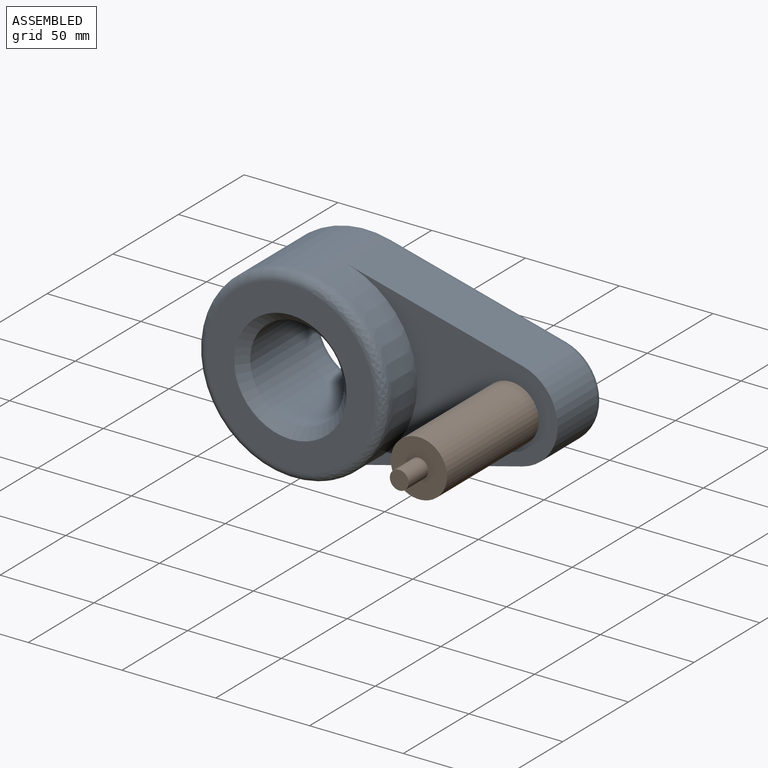
[diagram: assembled view]
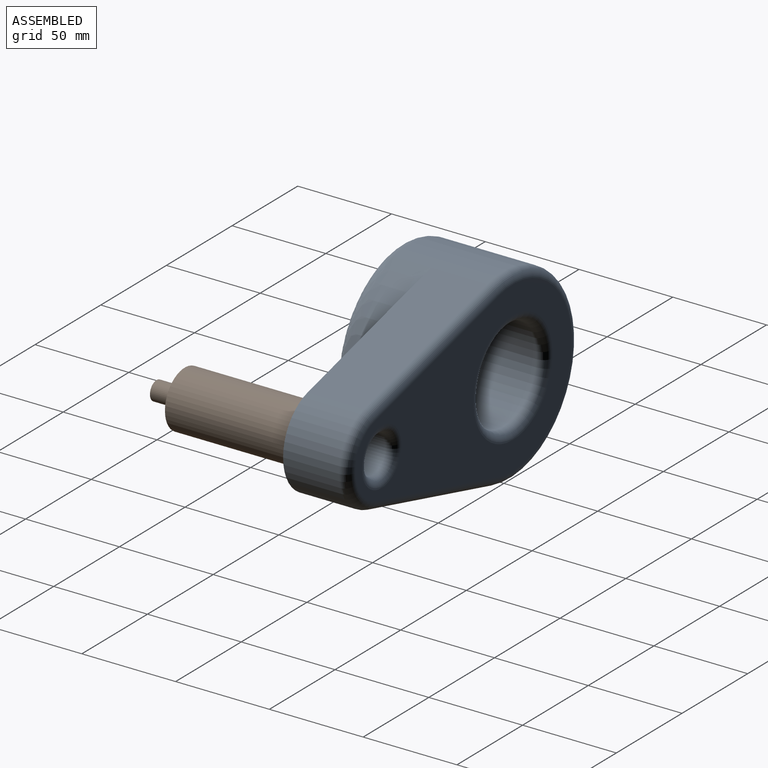
[diagram: assembled view, second angle]
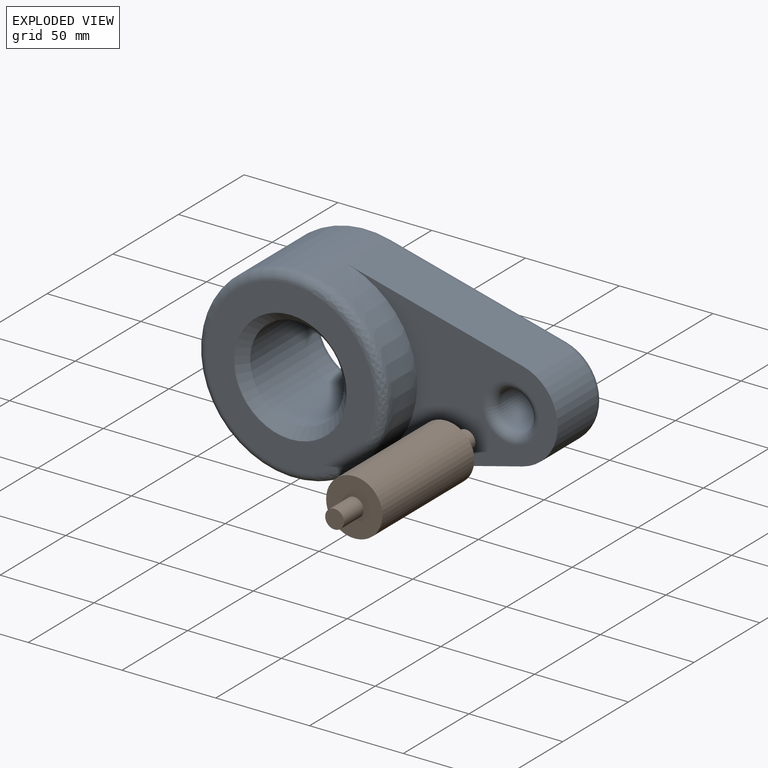
[diagram: exploded view]
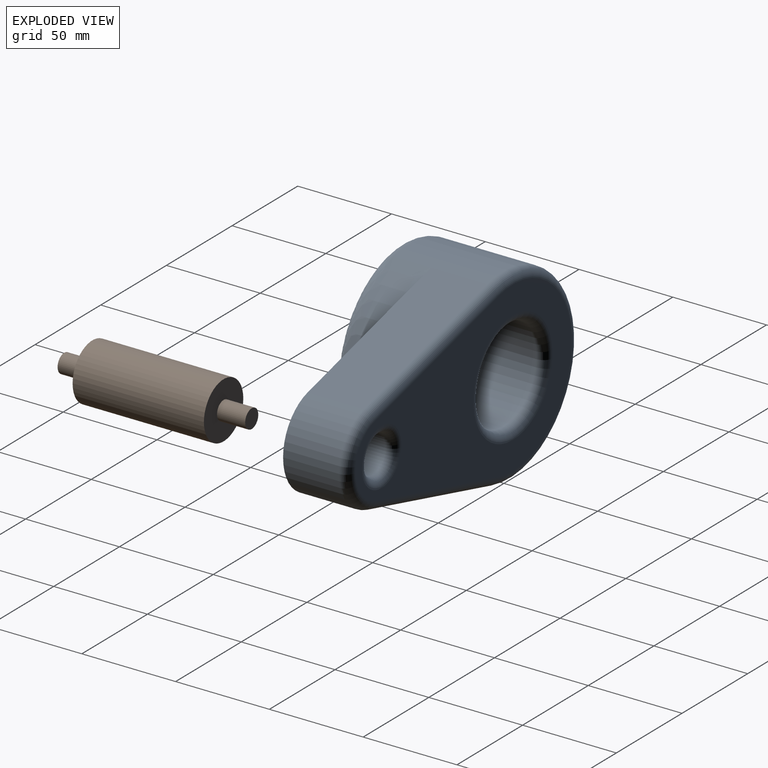
[diagram: exploded view, second angle]
ASSEMBLY  parts=2 mates=2
PART A: 20 faces, bbox 181.2x60x111.8 mm
  f0: plane 112.5x96.82mm, normal (0,-1,0), area 4083.5mm2, adj f1,f3,f4,f6,f14
  f1: plane 93.75x30mm, normal (0.25,0,0.97), area 2904.7mm2, adj f0,f2,f4,f16
  f2: cylinder r=50mm len=100mm, axis (0,1,0), area 9117.4mm2, adj f1,f3,f6,f11,f17
  f3: plane 93.75x30mm, normal (0.25,0,-0.97), area 2904.7mm2, adj f0,f2,f4,f19
  f4: cylinder r=25mm len=48.41mm, axis (0,1,0), area 1977.2mm2, adj f0,f1,f3,f18
  f5: plane 165x90mm, normal (0,1,0), area 6979.1mm2, adj f13,f15,f16,f17,f18,f19
  f6: extruded ~96.82x37.5mm, area 2636.5mm2, adj f0,f2,f10
  f7: plane 90.01x90mm, normal (0,-1,0), area 3534mm2, adj f9,f10,f11
  f8: cylinder r=25mm len=50mm, axis (0,-1,0), area 7854mm2, adj f9,f15
  f9: cone r=25mm half-angle=45deg, axis (0,-1,0), area 1221.8mm2, adj f7,f8
  f10: bspline ~111.81x67.79mm, area 997.6mm2, adj f6,f7,f11
  f11: torus R=45mm, axis (0,-1,0), area 1380.1mm2, adj f2,f7,f10
  f12: cylinder r=10mm len=25mm, axis (0,-1,0), area 1570.8mm2, adj f13,f14
  f13: torus R=15mm, axis (0,-1,0), area 583.1mm2, adj f5,f12
  f14: torus R=15mm, axis (0,-1,0), area 583.1mm2, adj f0,f12
  f15: torus R=30mm, axis (0,-1,0), area 1323.4mm2, adj f5,f8
  f16: cylinder r=5mm len=95mm, axis (-0.97,0,0.25), area 760.5mm2, adj f1,f5,f17,f18
  f17: torus R=45mm, axis (0,-1,0), area 1380.1mm2, adj f2,f5,f16,f19
  f18: torus R=20mm, axis (0,-1,0), area 480mm2, adj f4,f5,f16,f19
  f19: cylinder r=5mm len=95mm, axis (0.97,0,0.25), area 760.5mm2, adj f3,f5,f17,f18
PART B: 7 faces, bbox 100x30x30 mm
  f0: plane 10x10mm, normal (-1,0,0), area 78.5mm2, adj f6
  f1: plane 10x10mm, normal (1,0,0), area 78.5mm2, adj f2
  f2: cylinder r=5mm len=15mm, axis (-1,0,0), area 471.2mm2, adj f1,f3
  f3: plane 30x30mm, normal (1,0,0), area 628.3mm2, adj f2,f4
  f4: cylinder r=15mm len=70mm, axis (-1,0,0), area 6597.3mm2, adj f3,f5
  f5: plane 30x30mm, normal (-1,0,0), area 628.3mm2, adj f4,f6
  f6: cylinder r=5mm len=15mm, axis (-1,0,0), area 471.2mm2, adj f0,f5
PLACE A t=(52.3,6.41,21.46)mm fixed
PLACE B rot(axis=(-0.58,-0.58,0.58),120deg) t=(152.3,-113.59,21.46)mm
MATE cylindrical B.f2 <-> A.f12  axis (0,-1,0) through (152.3,-21.09,21.46)mm
MATE fastened B.f2 <-> A.f4  axis (0,1,0) through (152.3,-28.59,21.46)mm
